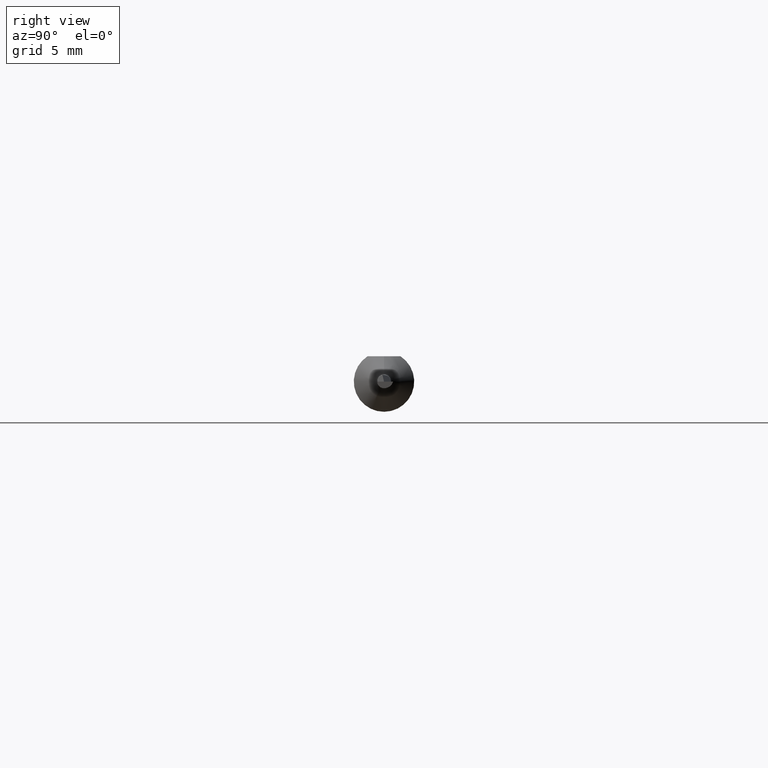
[diagram: clean part render]
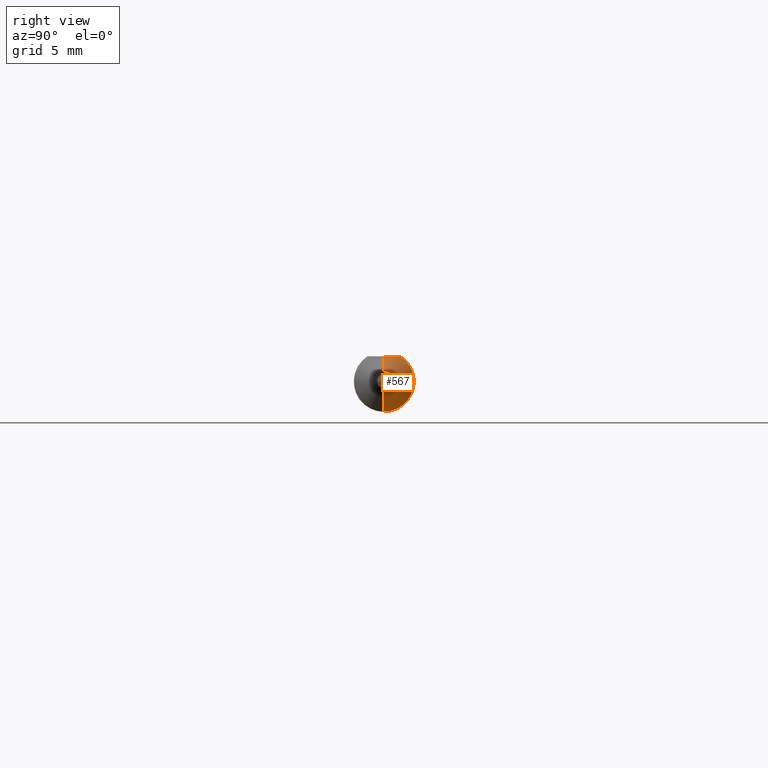
[diagram: same view with one face highlighted and labeled with its STEP entity id]
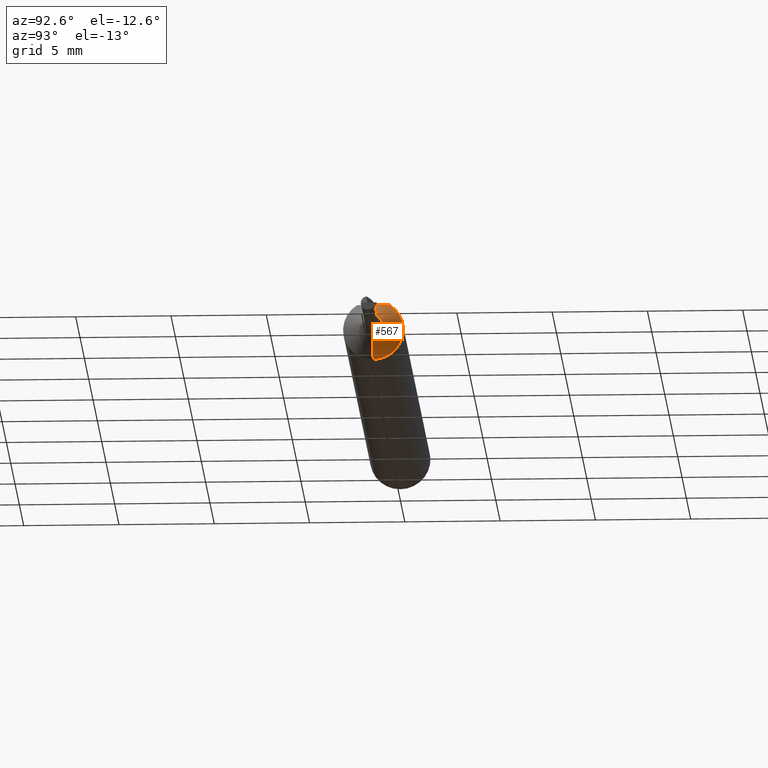
[diagram: same view with one face highlighted and labeled with its STEP entity id]
A machine part, right view. The second image highlights one B-rep face of the part: STEP entity #567.
A second angle (auxiliary view) of the same face is appended — the face is thin or edge-on in the first view.
In plain terms, the highlighted conical surface has half-angle 45 deg.
Its self-contained STEP definition (entity closure, byte-faithful):
#1 = ORIENTED_EDGE ( 'NONE', *, *, #77, .T. ) ;
#20 = EDGE_CURVE ( 'NONE', #551, #607, #581, .T. ) ;
#61 = CARTESIAN_POINT ( 'NONE',  ( 1.249649999999999928, 0.005921060704595572551, 0.05235000000000002152 ) ) ;
#70 = CARTESIAN_POINT ( 'NONE',  ( 1.239649999999999919, 0.03386738844375220686, 0.05235000000000000070 ) ) ;
#73 = DIRECTION ( 'NONE',  ( -0.7071067811865507924, 0.000000000000000000, 0.7071067811865442421 ) ) ;
#77 = EDGE_CURVE ( 'NONE', #357, #506, #620, .T. ) ;
#79 = CARTESIAN_POINT ( 'NONE',  ( 1.239649999999999919, 0.03386738844375220686, 0.05235000000000000070 ) ) ;
#90 = ORIENTED_EDGE ( 'NONE', *, *, #453, .F. ) ;
#114 = CARTESIAN_POINT ( 'NONE',  ( 1.244987470951200326, 0.02320690041070302967, 0.05235000000000002152 ) ) ;
#117 = CARTESIAN_POINT ( 'NONE',  ( 1.249650000000000150, -3.532469938474420466E-21, 0.05235000000000001458 ) ) ;
#118 = DIRECTION ( 'NONE',  ( 0.000000000000000000, 0.000000000000000000, 1.000000000000000000 ) ) ;
#121 = CARTESIAN_POINT ( 'NONE',  ( 1.280677669529663998, 0.000000000000000000, 0.02132233047033647161 ) ) ;
#133 = AXIS2_PLACEMENT_3D ( 'NONE', #164, #375, #555 ) ;
#164 = CARTESIAN_POINT ( 'NONE',  ( 1.280677669529663998, 0.000000000000000000, 0.000000000000000000 ) ) ;
#171 = CARTESIAN_POINT ( 'NONE',  ( 1.249650000000000150, -3.532469938474420466E-21, 0.05235000000000001458 ) ) ;
#180 = DIRECTION ( 'NONE',  ( -1.000000000000000000, -0.000000000000000000, -0.000000000000000000 ) ) ;
#213 = VECTOR ( 'NONE', #450, 39.37007874015748143 ) ;
#214 = CARTESIAN_POINT ( 'NONE',  ( 1.242494366674541162, 0.02863089781642877071, 0.05235000000000002152 ) ) ;
#225 = VECTOR ( 'NONE', #73, 39.37007874015748143 ) ;
#229 = EDGE_CURVE ( 'NONE', #357, #607, #340, .T. ) ;
#235 = CIRCLE ( 'NONE', #328, 0.06235000000000000264 ) ;
#263 = CONICAL_SURFACE ( 'NONE', #621, 0.02132233047033647161, 0.7853981633974437271 ) ;
#282 = EDGE_CURVE ( 'NONE', #506, #321, #363, .T. ) ;
#285 = FACE_OUTER_BOUND ( 'NONE', #396, .T. ) ;
#298 = ORIENTED_EDGE ( 'NONE', *, *, #20, .T. ) ;
#321 = VERTEX_POINT ( 'NONE', #408 ) ;
#328 = AXIS2_PLACEMENT_3D ( 'NONE', #427, #366, #471 ) ;
#340 = LINE ( 'NONE', #121, #225 ) ;
#357 = VERTEX_POINT ( 'NONE', #545 ) ;
#359 = CARTESIAN_POINT ( 'NONE',  ( 1.280677669529663998, 2.611232376085963916E-18, -0.02132233047033647161 ) ) ;
#363 = LINE ( 'NONE', #359, #213 ) ;
#366 = DIRECTION ( 'NONE',  ( -1.000000000000000000, -0.000000000000000000, -0.000000000000000000 ) ) ;
#375 = DIRECTION ( 'NONE',  ( -1.000000000000000000, -0.000000000000000000, -0.000000000000000000 ) ) ;
#396 = EDGE_LOOP ( 'NONE', ( #1, #398, #90, #298, #599 ) ) ;
#398 = ORIENTED_EDGE ( 'NONE', *, *, #282, .T. ) ;
#408 = CARTESIAN_POINT ( 'NONE',  ( 1.239649999999999919, 7.635672792683746671E-18, -0.06235000000000000264 ) ) ;
#414 = CARTESIAN_POINT ( 'NONE',  ( 1.280677669529663998, 2.611232376085951590E-18, -0.02132233047033637099 ) ) ;
#425 = CARTESIAN_POINT ( 'NONE',  ( 1.248578772065486620, 0.01191466962039929023, 0.05235000000000001458 ) ) ;
#427 = CARTESIAN_POINT ( 'NONE',  ( 1.239649999999999919, 0.000000000000000000, 0.000000000000000000 ) ) ;
#450 = DIRECTION ( 'NONE',  ( -0.7071067811865507924, 8.659560562354893415E-17, -0.7071067811865442421 ) ) ;
#453 = EDGE_CURVE ( 'NONE', #551, #321, #235, .T. ) ;
#471 = DIRECTION ( 'NONE',  ( 0.000000000000000000, 0.000000000000000000, 1.000000000000000000 ) ) ;
#475 = CARTESIAN_POINT ( 'NONE',  ( 1.280677669529663998, 0.000000000000000000, 0.000000000000000000 ) ) ;
#506 = VERTEX_POINT ( 'NONE', #414 ) ;
#545 = CARTESIAN_POINT ( 'NONE',  ( 1.280677669529663998, 0.000000000000000000, 0.02132233047033637099 ) ) ;
#551 = VERTEX_POINT ( 'NONE', #79 ) ;
#555 = DIRECTION ( 'NONE',  ( 0.000000000000000000, 0.000000000000000000, 1.000000000000000000 ) ) ;
#567 = ADVANCED_FACE ( 'NONE', ( #285 ), #263, .T. ) ;
#581 = B_SPLINE_CURVE_WITH_KNOTS ( 'NONE', 3,
 ( #70, #214, #114, #425, #61, #117 ),
 .UNSPECIFIED., .F., .F.,
 ( 4, 2, 4 ),
 ( 0.002097671056027856137, 0.002546659511174761970, 0.002995647966321668236 ),
 .UNSPECIFIED. ) ;
#599 = ORIENTED_EDGE ( 'NONE', *, *, #229, .F. ) ;
#607 = VERTEX_POINT ( 'NONE', #171 ) ;
#620 = CIRCLE ( 'NONE', #133, 0.02132233047033647161 ) ;
#621 = AXIS2_PLACEMENT_3D ( 'NONE', #475, #180, #118 ) ;